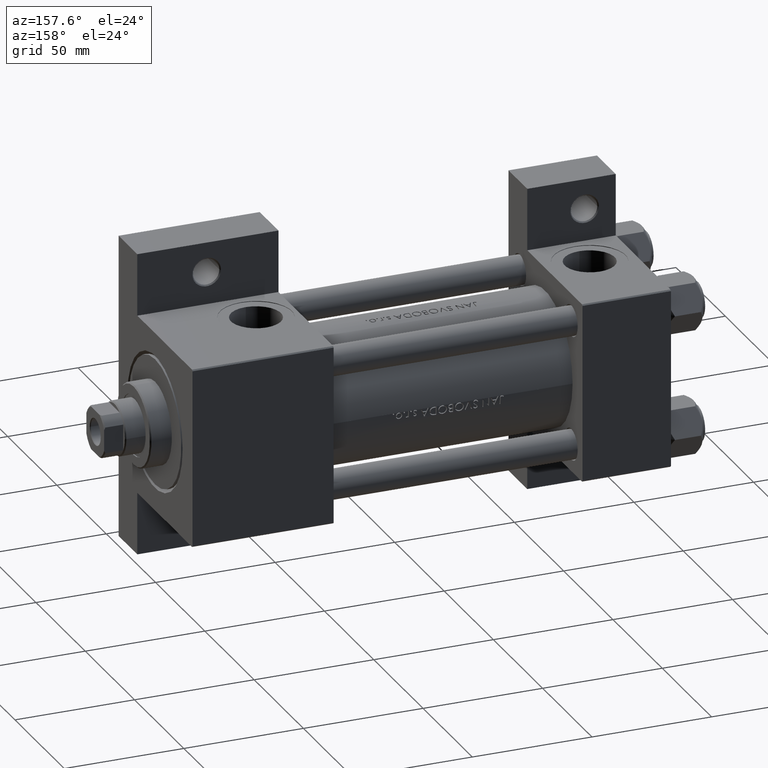
[diagram: clean part render]
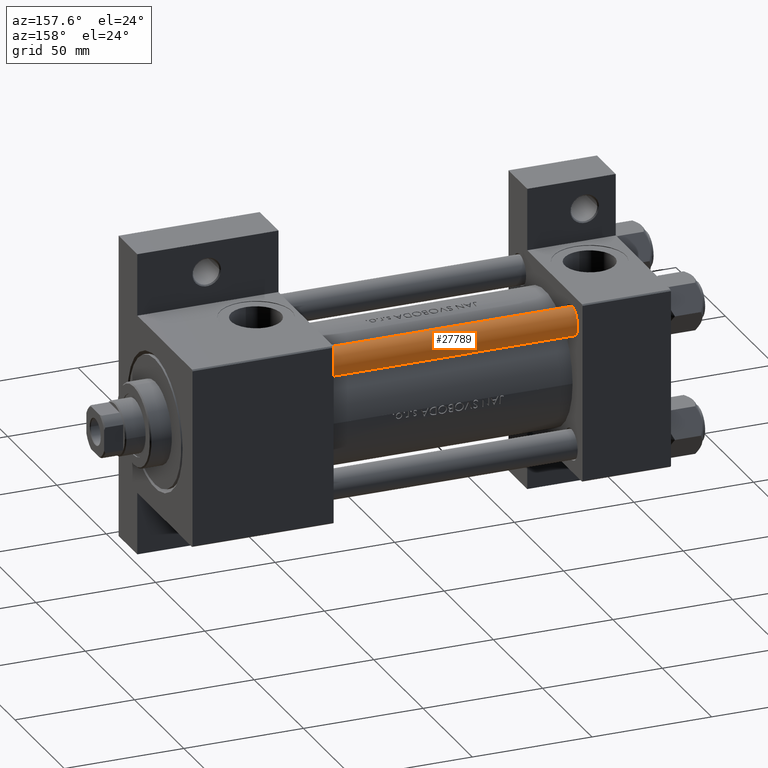
[diagram: same view with one face highlighted and labeled with its STEP entity id]
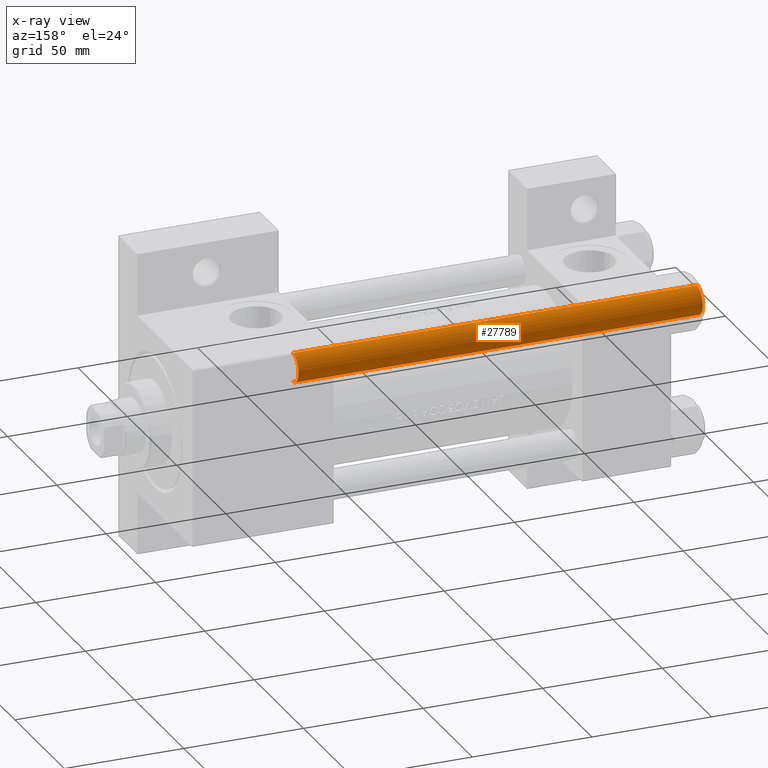
[diagram: x-ray of the same camera — body ghosted, the highlighted face saturated]
A machine part, auxiliary view. The second image highlights one B-rep face of the part: STEP entity #27789.
The next image is the same camera in x-ray: the body ghosted, the highlighted face saturated — about 0% of this face is hidden behind the body in this view.
In plain terms, the highlighted cylindrical surface (edge-blend (fillet) strip) has radius 6 mm, axis along (-1, -0, -0).
Its self-contained STEP definition (entity closure, byte-faithful):
#1121 = EDGE_CURVE ( 'NONE', #46319, #30621, #40251, .T. ) ;
#3111 = ORIENTED_EDGE ( 'NONE', *, *, #1121, .T. ) ;
#3794 = EDGE_CURVE ( 'NONE', #28431, #28136, #36378, .T. ) ;
#3890 = ORIENTED_EDGE ( 'NONE', *, *, #10975, .T. ) ;
#4722 = CARTESIAN_POINT ( 'NONE',  ( -6.000000000000000888, 0.000000000000000000, 0.4999999999999726885 ) ) ;
#6558 = EDGE_CURVE ( 'NONE', #28431, #30621, #42296, .T. ) ;
#7325 = LINE ( 'NONE', #42819, #20585 ) ;
#9527 = EDGE_LOOP ( 'NONE', ( #31851, #3890, #3111, #20325 ) ) ;
#9693 = AXIS2_PLACEMENT_3D ( 'NONE', #28660, #47824, #28158 ) ;
#10975 = EDGE_CURVE ( 'NONE', #28136, #46319, #7325, .T. ) ;
#11293 = DIRECTION ( 'NONE',  ( -0.000000000000000000, -0.000000000000000000, -1.000000000000000000 ) ) ;
#11933 = CARTESIAN_POINT ( 'NONE',  ( -6.000000000000000888, 0.000000000000000000, 170.0000000000000000 ) ) ;
#13624 = DIRECTION ( 'NONE',  ( -0.000000000000000000, -0.000000000000000000, 1.000000000000000000 ) ) ;
#19282 = DIRECTION ( 'NONE',  ( 1.000000000000000000, 0.000000000000000000, 0.000000000000000000 ) ) ;
#20325 = ORIENTED_EDGE ( 'NONE', *, *, #6558, .F. ) ;
#20585 = VECTOR ( 'NONE', #11293, 1000.000000000000000 ) ;
#20805 = CARTESIAN_POINT ( 'NONE',  ( -6.000000000000000888, 0.000000000000000000, 169.5000000000000000 ) ) ;
#21339 = CARTESIAN_POINT ( 'NONE',  ( 0.000000000000000000, 0.000000000000000000, 0.4999999999999726885 ) ) ;
#21341 = VECTOR ( 'NONE', #46523, 1000.000000000000000 ) ;
#22767 = AXIS2_PLACEMENT_3D ( 'NONE', #21339, #13624, #39274 ) ;
#23752 = DIRECTION ( 'NONE',  ( 0.000000000000000000, 0.000000000000000000, -1.000000000000000000 ) ) ;
#27612 = AXIS2_PLACEMENT_3D ( 'NONE', #38695, #23752, #19282 ) ;
#27789 = ADVANCED_FACE ( 'NONE', ( #32661 ), #44095, .T. ) ;
#28136 = VERTEX_POINT ( 'NONE', #31823 ) ;
#28158 = DIRECTION ( 'NONE',  ( -1.000000000000000000, 0.000000000000000000, 0.000000000000000000 ) ) ;
#28431 = VERTEX_POINT ( 'NONE', #20805 ) ;
#28660 = CARTESIAN_POINT ( 'NONE',  ( 0.000000000000000000, 0.000000000000000000, 170.0000000000000000 ) ) ;
#30621 = VERTEX_POINT ( 'NONE', #4722 ) ;
#31823 = CARTESIAN_POINT ( 'NONE',  ( 6.000000000000000888, 7.347880794884120722E-16, 169.5000000000000000 ) ) ;
#31851 = ORIENTED_EDGE ( 'NONE', *, *, #3794, .T. ) ;
#32661 = FACE_OUTER_BOUND ( 'NONE', #9527, .T. ) ;
#36378 = CIRCLE ( 'NONE', #27612, 6.000000000000000888 ) ;
#38695 = CARTESIAN_POINT ( 'NONE',  ( 0.000000000000000000, 0.000000000000000000, 169.5000000000000000 ) ) ;
#39274 = DIRECTION ( 'NONE',  ( 1.000000000000000000, 0.000000000000000000, 0.000000000000000000 ) ) ;
#40251 = CIRCLE ( 'NONE', #22767, 6.000000000000000888 ) ;
#42296 = LINE ( 'NONE', #11933, #21341 ) ;
#42819 = CARTESIAN_POINT ( 'NONE',  ( 6.000000000000000888, 7.347880794884120722E-16, 170.0000000000000000 ) ) ;
#44016 = CARTESIAN_POINT ( 'NONE',  ( 6.000000000000000888, 7.347880794884120722E-16, 0.4999999999999726885 ) ) ;
#44095 = CYLINDRICAL_SURFACE ( 'NONE', #9693, 6.000000000000000888 ) ;
#46319 = VERTEX_POINT ( 'NONE', #44016 ) ;
#46523 = DIRECTION ( 'NONE',  ( -0.000000000000000000, -0.000000000000000000, -1.000000000000000000 ) ) ;
#47824 = DIRECTION ( 'NONE',  ( -0.000000000000000000, -0.000000000000000000, -1.000000000000000000 ) ) ;